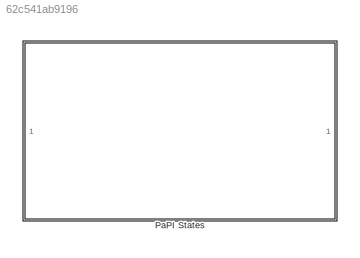
MODEL slx_62c541ab9196
KIND model
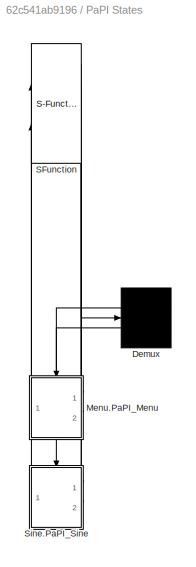
BLOCK [SubSystem] PaPI States
  ErrorFcn = Stateflow.Translate.translate
  PermitHierarchicalResolution = ExplicitOnly
  Ports = []
  RequestExecContextInheritance = off
  SFBlockType = Chart
  TreatAsAtomicUnit = on
BLOCK [Demux] PaPI States/ Demux 
  Outputs = 2
  Ports = [1, 2]
BLOCK [S-Function] PaPI States/ SFunction 
  EnableBusSupport = on
  FunctionName = sf_sfun
  PortCounts = [2 5]
  Ports = [2, 5]
  Tag = Stateflow S-Function simulink_example_stateflow 1
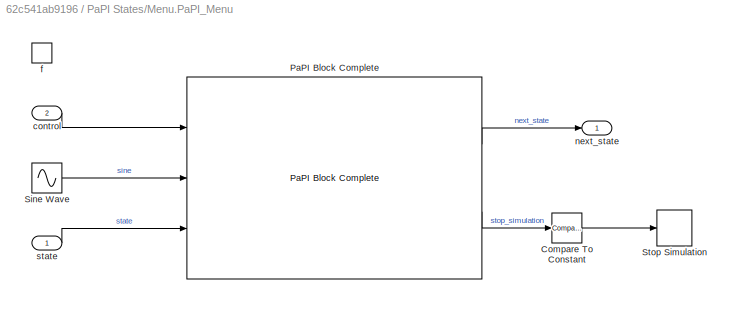
BLOCK [SubSystem] PaPI States/Menu.PaPI_Menu
  Ports = [2, 1, 0, 1]
  PreDeleteFcn = Stateflow.SLINSF.SimulinkMan.removePreDeleteFcn
  RequestExecContextInheritance = off
  UndoDeleteFcn = Stateflow.SLINSF.SimulinkMan.restorePreDeleteFcn
BLOCK [Reference] PaPI States/Menu.PaPI_Menu/Compare To Constant  REF=simulink/Logic and Bit
Operations/Compare
To Constant
  OutDataTypeStr = boolean
  Ports = [1, 1]
  SourceBlock = simulink/Logic and Bit\nOperations/Compare\nTo Constant
  SourceType = Compare To Constant
  ZeroCross = on
  const = 1
  relop = ==
BLOCK [Reference] PaPI States/Menu.PaPI_Menu/PaPI Block Complete  REF=PaPI/PaPI Block Complete
  Ports = [3, 2]
  SampleTime = -1
  SourceBlock = PaPI/PaPI Block Complete
  SourceType = PaPI Block Complete
  UDPLocalPort = 20001
  UDPRemoteIP = '127.0.0.1'
  UDPRemotePort = 20000
  UDPStart = on
  amount_parameters = [1,1]
  define_inputs = [1,1]
  json_string = fileread('simulink_example_stateflow_config_state1.json')
  split_inputs = [1,1]
BLOCK [Sin] PaPI States/Menu.PaPI_Menu/Sine Wave
  Ports = [0, 1]
BLOCK [Stop] PaPI States/Menu.PaPI_Menu/Stop Simulation
BLOCK [Inport] PaPI States/Menu.PaPI_Menu/control
  IconDisplay = Port number
  Port = 2
BLOCK [TriggerPort] PaPI States/Menu.PaPI_Menu/f
  CopyFcn = Stateflow.SLINSF.SimulinkMan.removeBlockPreDeleteFcn
  Ports = []
  PreDeleteFcn = Stateflow.SLINSF.SimulinkMan.unsafePredeleteFcn
  SampleTime = 0.1
  StatesWhenEnabling = reset
  TriggerType = function-call
BLOCK [Outport] PaPI States/Menu.PaPI_Menu/next_state
  IconDisplay = Port number
  InitialOutput = 0
BLOCK [Inport] PaPI States/Menu.PaPI_Menu/state
  IconDisplay = Port number
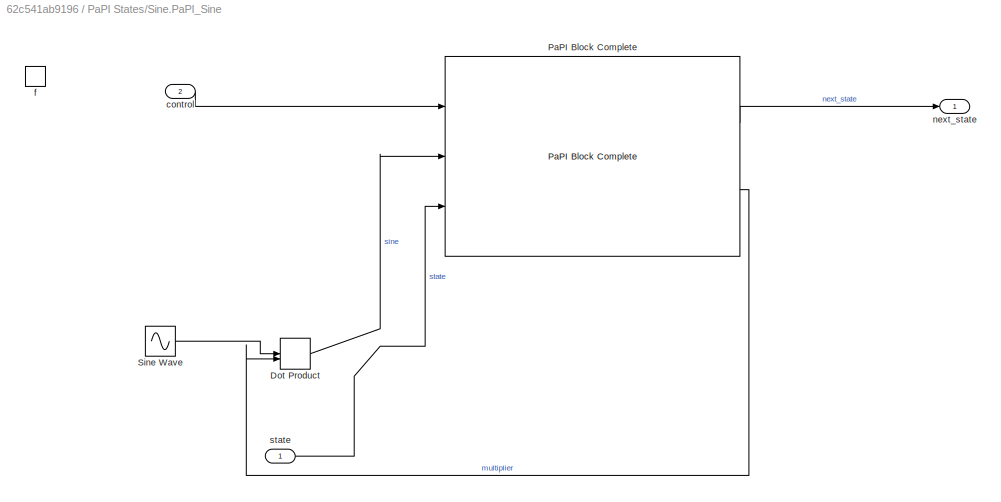
BLOCK [SubSystem] PaPI States/Sine.PaPI_Sine
  Ports = [2, 1, 0, 1]
  PreDeleteFcn = Stateflow.SLINSF.SimulinkMan.removePreDeleteFcn
  RequestExecContextInheritance = off
  UndoDeleteFcn = Stateflow.SLINSF.SimulinkMan.restorePreDeleteFcn
BLOCK [DotProduct] PaPI States/Sine.PaPI_Sine/Dot Product
  OutDataTypeStr = Inherit: Inherit via internal rule
BLOCK [Reference] PaPI States/Sine.PaPI_Sine/PaPI Block Complete  REF=PaPI/PaPI Block Complete
  Ports = [3, 2]
  SampleTime = -1
  SourceBlock = PaPI/PaPI Block Complete
  SourceType = PaPI Block Complete
  UDPLocalPort = 20001
  UDPRemoteIP = '127.0.0.1'
  UDPRemotePort = 20000
  UDPStart = off
  amount_parameters = [1,1]
  define_inputs = [1,1]
  json_string = fileread('simulink_example_stateflow_config_state2.json')
  split_inputs = [1,1]
BLOCK [Sin] PaPI States/Sine.PaPI_Sine/Sine Wave
  Ports = [0, 1]
BLOCK [Inport] PaPI States/Sine.PaPI_Sine/control
  IconDisplay = Port number
  Port = 2
BLOCK [TriggerPort] PaPI States/Sine.PaPI_Sine/f
  CopyFcn = Stateflow.SLINSF.SimulinkMan.removeBlockPreDeleteFcn
  Ports = []
  PreDeleteFcn = Stateflow.SLINSF.SimulinkMan.unsafePredeleteFcn
  StatesWhenEnabling = reset
  TriggerType = function-call
BLOCK [Outport] PaPI States/Sine.PaPI_Sine/next_state
  IconDisplay = Port number
  InitialOutput = 0
BLOCK [Inport] PaPI States/Sine.PaPI_Sine/state
  IconDisplay = Port number
CHART PaPI States states=4 transitions=3
  STATE_LABEL 'Menu\nentry: state=1, [next_state] = PaPI_Menu(state,1), \nduring: [next_state] = PaPI_Menu(state,0)\nexit: [next_state] = PaPI_Menu(state,2)'
  STATE_LABEL 'next_state  = PaPI_Menu(state,control)'
  STATE_LABEL 'next_state  = PaPI_Menu(state,control)'
  STATE_LABEL 'Sine\nentry: state=2, [next_state] = PaPI_Sine(state, 1)\nduring: [next_state] = PaPI_Sine(state, 0)\nexit: [next_state] = PaPI_Sine(state, 2)'
  STATE_LABEL 'next_state  = PaPI_Sine(state,control)'
  STATE_LABEL 'next_state  = PaPI_Sine(state,control)'
